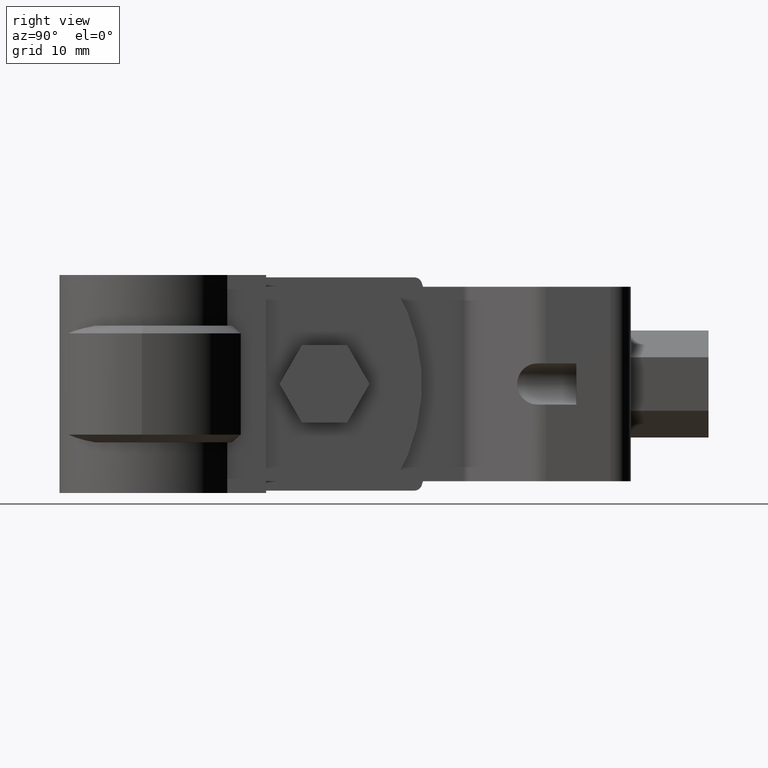
[diagram: clean part render]
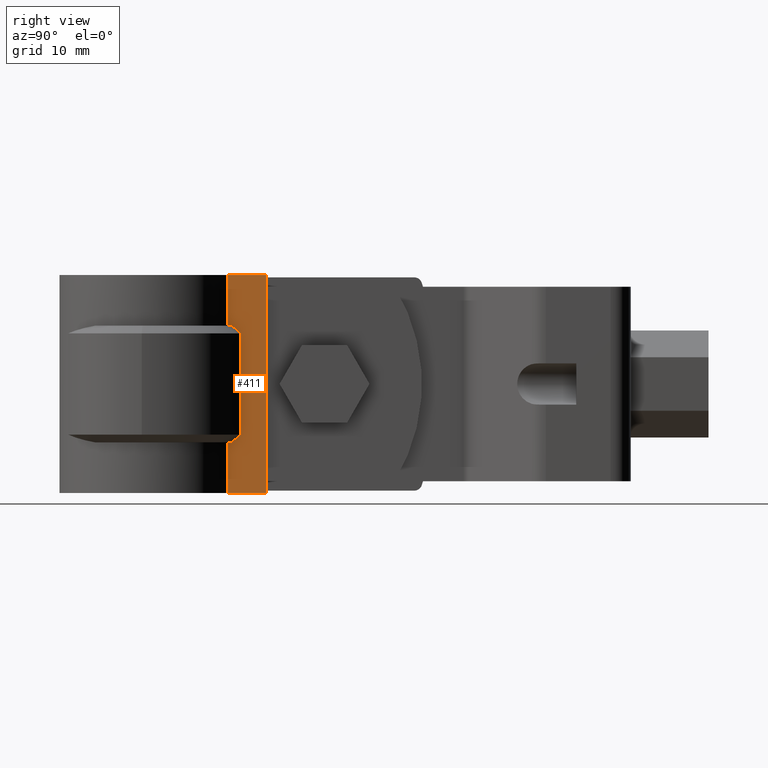
[diagram: same view with one face highlighted and labeled with its STEP entity id]
A machine part, right view. The second image highlights one B-rep face of the part: STEP entity #411.
In plain terms, the highlighted planar face has unit normal (1, -0, 0).
Its self-contained STEP definition (entity closure, byte-faithful):
#411 = ADVANCED_FACE( '', ( #795 ), #796, .T. );
#795 = FACE_OUTER_BOUND( '', #1788, .T. );
#796 = PLANE( '', #1789 );
#1788 = EDGE_LOOP( '', ( #3687, #3688, #3689, #3690, #3691, #3692, #3693, #3694, #3695, #3696 ) );
#1789 = AXIS2_PLACEMENT_3D( '', #3697, #3698, #3699 );
#3687 = ORIENTED_EDGE( '', *, *, #6660, .T. );
#3688 = ORIENTED_EDGE( '', *, *, #6661, .T. );
#3689 = ORIENTED_EDGE( '', *, *, #6662, .F. );
#3690 = ORIENTED_EDGE( '', *, *, #6663, .F. );
#3691 = ORIENTED_EDGE( '', *, *, #6664, .F. );
#3692 = ORIENTED_EDGE( '', *, *, #6665, .T. );
#3693 = ORIENTED_EDGE( '', *, *, #6666, .F. );
#3694 = ORIENTED_EDGE( '', *, *, #6667, .T. );
#3695 = ORIENTED_EDGE( '', *, *, #6668, .T. );
#3696 = ORIENTED_EDGE( '', *, *, #6669, .F. );
#3697 = CARTESIAN_POINT( '', ( 6.10000000000000, 9.96640481818793, -26.5000000000000 ) );
#3698 = DIRECTION( '', ( 1.00000000000000, -6.07153216591882E-017, 0.000000000000000 ) );
#3699 = DIRECTION( '', ( -6.07153216591882E-017, -1.00000000000000, 0.000000000000000 ) );
#6660 = EDGE_CURVE( '', #7677, #7678, #7679, .T. );
#6661 = EDGE_CURVE( '', #7678, #7680, #7681, .T. );
#6662 = EDGE_CURVE( '', #7682, #7680, #7683, .T. );
#6663 = EDGE_CURVE( '', #7684, #7682, #7685, .T. );
#6664 = EDGE_CURVE( '', #7686, #7684, #7687, .T. );
#6665 = EDGE_CURVE( '', #7686, #7688, #7689, .T. );
#6666 = EDGE_CURVE( '', #7690, #7688, #7691, .T. );
#6667 = EDGE_CURVE( '', #7690, #7692, #7693, .T. );
#6668 = EDGE_CURVE( '', #7692, #7694, #7695, .T. );
#6669 = EDGE_CURVE( '', #7677, #7694, #7696, .T. );
#7677 = VERTEX_POINT( '', #9911 );
#7678 = VERTEX_POINT( '', #9912 );
#7679 = LINE( '', #9913, #9914 );
#7680 = VERTEX_POINT( '', #9915 );
#7681 = LINE( '', #9916, #9917 );
#7682 = VERTEX_POINT( '', #9918 );
#7683 = LINE( '', #9919, #9920 );
#7684 = VERTEX_POINT( '', #9921 );
#7685 = LINE( '', #9922, #9923 );
#7686 = VERTEX_POINT( '', #9924 );
#7687 = LINE( '', #9925, #9926 );
#7688 = VERTEX_POINT( '', #9927 );
#7689 = B_SPLINE_CURVE_WITH_KNOTS( '', 3, ( #9928, #9929, #9930, #9931 ), .UNSPECIFIED., .F., .F., ( 4, 4 ), ( 0.000000000000000, 0.00151710371603436 ), .UNSPECIFIED. );
#7690 = VERTEX_POINT( '', #9932 );
#7691 = LINE( '', #9933, #9934 );
#7692 = VERTEX_POINT( '', #9935 );
#7693 = B_SPLINE_CURVE_WITH_KNOTS( '', 3, ( #9936, #9937, #9938, #9939 ), .UNSPECIFIED., .F., .F., ( 4, 4 ), ( 0.000000000000000, 0.00151710371603436 ), .UNSPECIFIED. );
#7694 = VERTEX_POINT( '', #9940 );
#7695 = LINE( '', #9941, #9942 );
#7696 = LINE( '', #9943, #9944 );
#9911 = CARTESIAN_POINT( '', ( 6.10000000000000, 9.96640481818796, -26.5000000000000 ) );
#9912 = CARTESIAN_POINT( '', ( 6.10000000000000, 14.9554761014001, -26.5000000000000 ) );
#9913 = CARTESIAN_POINT( '', ( 6.10000000000000, 9.96640481818793, -26.5000000000000 ) );
#9914 = VECTOR( '', #12671, 1000.00000000000 );
#9915 = CARTESIAN_POINT( '', ( 6.10000000000000, 14.9554761014001, 1.50000000000000 ) );
#9916 = CARTESIAN_POINT( '', ( 6.10000000000000, 14.9554761014001, -26.5000000000000 ) );
#9917 = VECTOR( '', #12672, 1000.00000000000 );
#9918 = CARTESIAN_POINT( '', ( 6.10000000000000, 9.96640481818796, 1.50000000000000 ) );
#9919 = CARTESIAN_POINT( '', ( 6.10000000000000, 9.96640481818793, 1.50000000000000 ) );
#9920 = VECTOR( '', #12673, 1000.00000000000 );
#9921 = CARTESIAN_POINT( '', ( 6.10000000000000, 9.96640481818796, -5.00000000000000 ) );
#9922 = CARTESIAN_POINT( '', ( 6.10000000000000, 9.96640481818796, -26.5000000000000 ) );
#9923 = VECTOR( '', #12674, 1000.00000000000 );
#9924 = CARTESIAN_POINT( '', ( 6.10000000000000, 10.5481858629814, -5.00000000000000 ) );
#9925 = CARTESIAN_POINT( '', ( 6.10000000000000, 9.96640481818793, -5.00000000000000 ) );
#9926 = VECTOR( '', #12675, 1000.00000000000 );
#9927 = CARTESIAN_POINT( '', ( 6.10000000000000, 11.6890643338122, -6.00000000000000 ) );
#9928 = CARTESIAN_POINT( '', ( 6.10000000000000, 10.5481858629814, -5.00000000000000 ) );
#9929 = CARTESIAN_POINT( '', ( 6.10000000000000, 10.9305273533123, -5.33098146107014 ) );
#9930 = CARTESIAN_POINT( '', ( 6.10000000000000, 11.3106579793807, -5.66452664230010 ) );
#9931 = CARTESIAN_POINT( '', ( 6.10000000000000, 11.6890643338122, -6.00000000000000 ) );
#9932 = CARTESIAN_POINT( '', ( 6.10000000000000, 11.6890643338122, -19.0000000000000 ) );
#9933 = CARTESIAN_POINT( '', ( 6.10000000000000, 11.6890643338122, -20.0000000000000 ) );
#9934 = VECTOR( '', #12676, 1000.00000000000 );
#9935 = CARTESIAN_POINT( '', ( 6.10000000000000, 10.5481858629814, -20.0000000000000 ) );
#9936 = CARTESIAN_POINT( '', ( 6.10000000000000, 11.6890643338122, -19.0000000000000 ) );
#9937 = CARTESIAN_POINT( '', ( 6.10000000000000, 11.3106579793807, -19.3354733576999 ) );
#9938 = CARTESIAN_POINT( '', ( 6.10000000000000, 10.9305273533123, -19.6690185389299 ) );
#9939 = CARTESIAN_POINT( '', ( 6.10000000000000, 10.5481858629814, -20.0000000000000 ) );
#9940 = CARTESIAN_POINT( '', ( 6.10000000000000, 9.96640481818796, -20.0000000000000 ) );
#9941 = CARTESIAN_POINT( '', ( 6.10000000000000, 9.96640481818793, -20.0000000000000 ) );
#9942 = VECTOR( '', #12677, 1000.00000000000 );
#9943 = CARTESIAN_POINT( '', ( 6.10000000000000, 9.96640481818796, -26.5000000000000 ) );
#9944 = VECTOR( '', #12678, 1000.00000000000 );
#12671 = DIRECTION( '', ( 6.07153216591882E-017, 1.00000000000000, 0.000000000000000 ) );
#12672 = DIRECTION( '', ( 0.000000000000000, 0.000000000000000, 1.00000000000000 ) );
#12673 = DIRECTION( '', ( 6.07153216591882E-017, 1.00000000000000, 0.000000000000000 ) );
#12674 = DIRECTION( '', ( 0.000000000000000, 0.000000000000000, 1.00000000000000 ) );
#12675 = DIRECTION( '', ( -6.07153216591882E-017, -1.00000000000000, 0.000000000000000 ) );
#12676 = DIRECTION( '', ( 0.000000000000000, 0.000000000000000, 1.00000000000000 ) );
#12677 = DIRECTION( '', ( -6.07153216591882E-017, -1.00000000000000, 0.000000000000000 ) );
#12678 = DIRECTION( '', ( 0.000000000000000, 0.000000000000000, 1.00000000000000 ) );